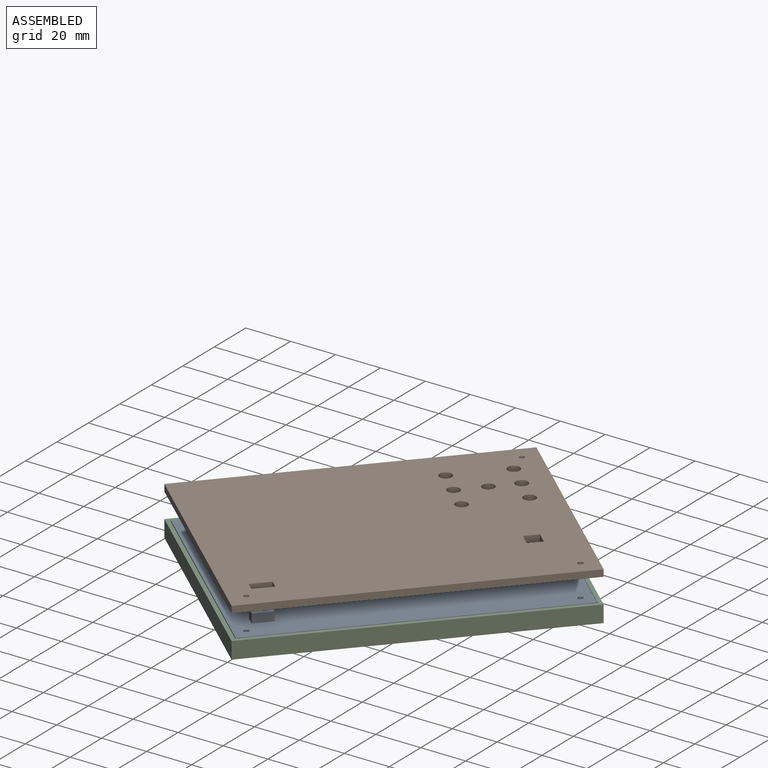
[diagram: assembled view]
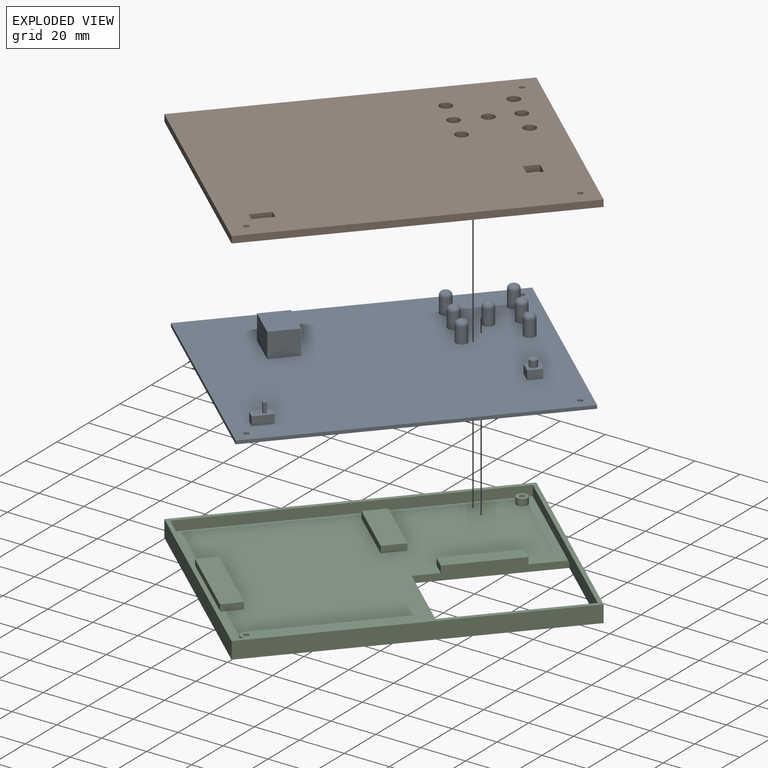
[diagram: exploded view]
GUIDED TOUR — MATED ASSEMBLY (Onshape document 810889190998281996123d04, AutoMate assembly 810889190998281996123d04_08385ad80a6543502da460e0_b0400b7bc38418ea9518d57a_default)

This assembly has 3 components, labeled P0..P2 below (a component is one placed occurrence of a part; the same part can appear more than once), held together by 2 mates. A mate is a constraint between two components; its type names the relative motion it leaves free:
  SLIDER — leaves translation along the listed axis free.
Axis/direction vectors are unit vectors and 'through' points are millimeter coordinates, both in the assembly's world frame.

MATES
  1. SLIDER "Slider 2": P2 <-> P0, axis (0.000, 0.000, 1.000) through (-167.02, 120.14, 121.80) mm
  2. SLIDER "Slider 1": P1 <-> P0, axis (0.000, 0.000, -1.000) through (-167.02, 120.14, 134.45) mm

ASSEMBLY ORDER
  1. P2 — the base component [order verified]
  2. P0 [order verified]
  3. P1 [order verified]
Order-tag legend:
  [order verified] — this step's position reverses a verified removal order: the component was checked to insert without passing through the ones already placed.

Of the 3 components, 1 carries the full construction recipe — the FeatureScript program that regenerates the part's solid from scratch; the rest are supplied as boundary geometry only.
Each toured component is shown spotlighted twice — in the assembled view, then in the exploded view, where a leader line traces a displaced component back to its assembled socket (saturated green if recipe-attached, orange if geometry-only; every other component desaturated gray) — followed by its recipe or geometry summary and the mates that hold it.
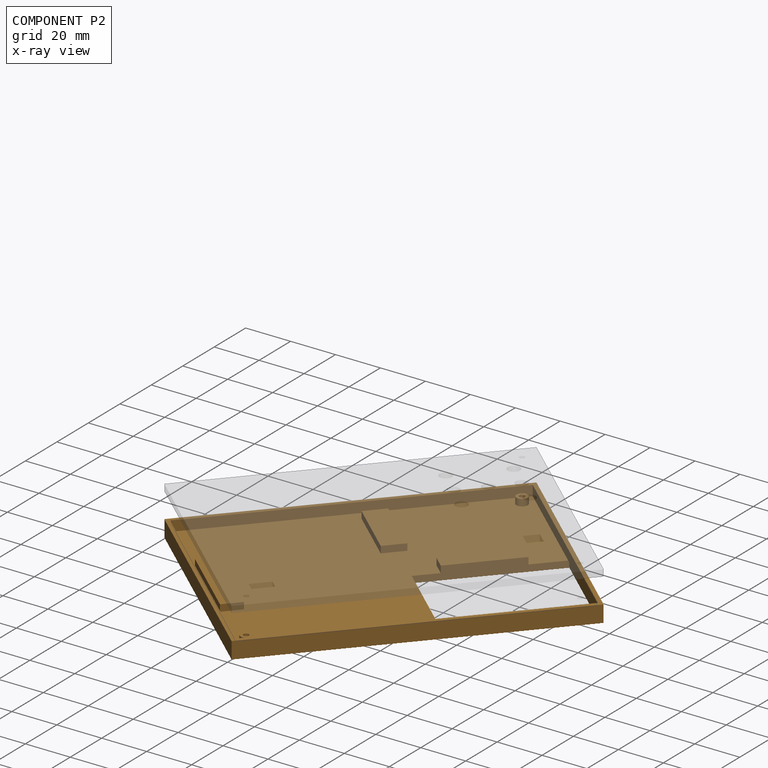
[diagram: component P2 — x-ray view]
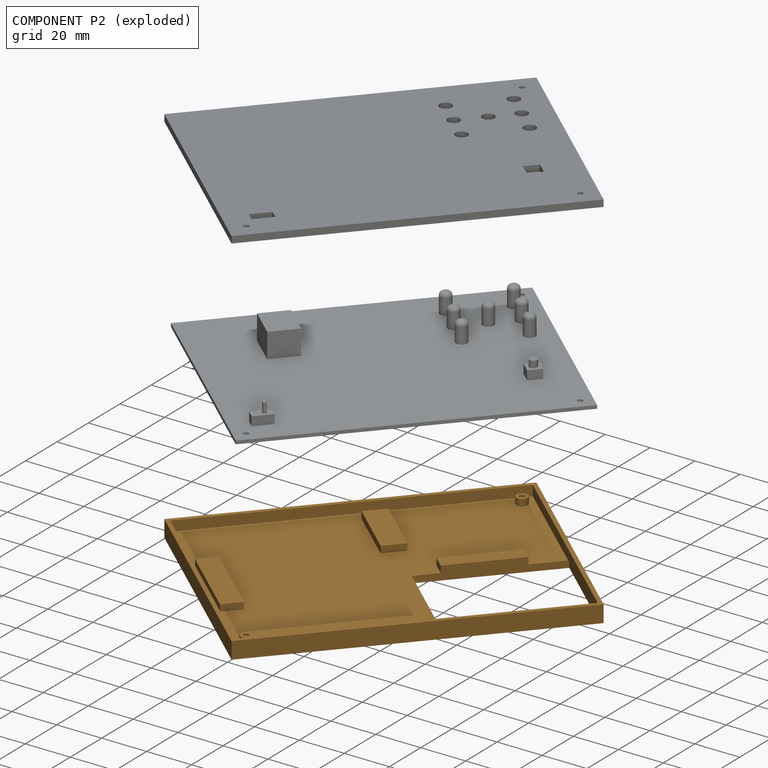
[diagram: component P2 — exploded]
COMPONENT P2 — geometry summary (no construction recipe available for this part):
  bounding box: 139.3 x 108.1 x 7.5 mm
  B-rep topology: 1 solid, 41 faces, 194 edges
  volume: 44405 mm^3 (39% of its bounding box)
Held by: SLIDER mate "Slider 2" to P0.
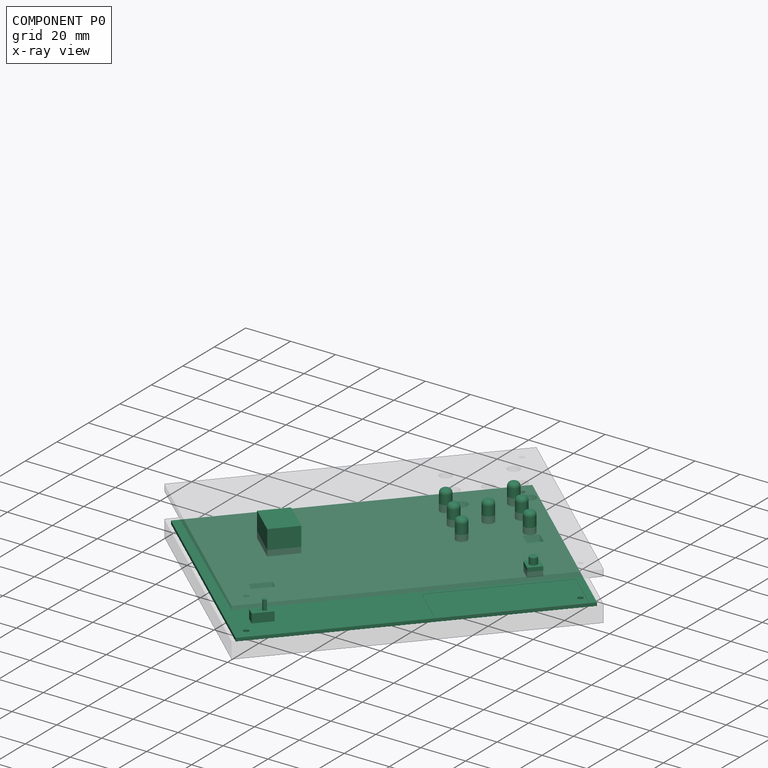
[diagram: component P0 — x-ray view]
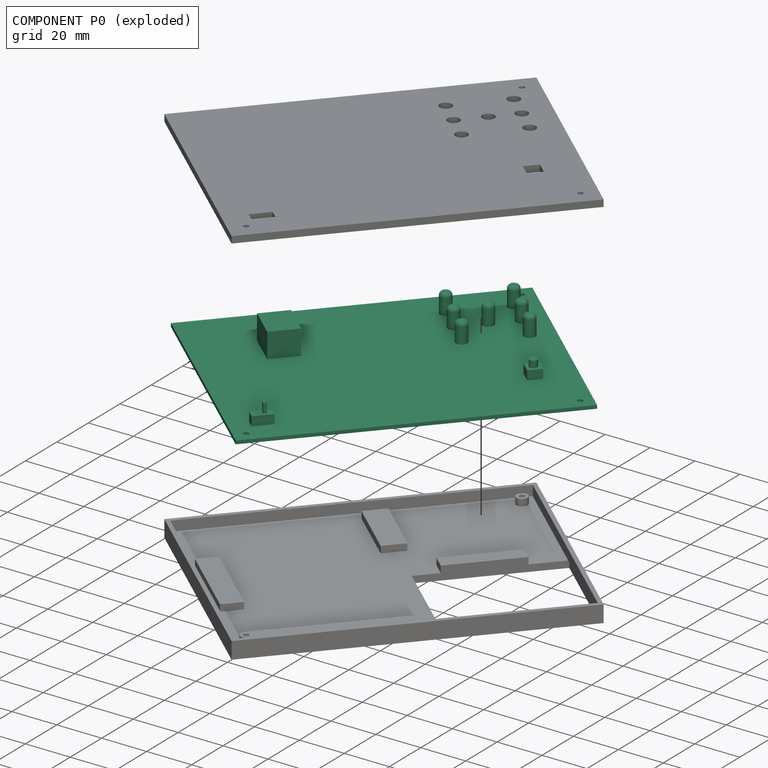
[diagram: component P0 — exploded]
COMPONENT P0 — recipe-attached (CADFS 00832274, mesh-verified: the recipe's output STEP matches this component's geometry to below the mesh-comparison resolution (tessellation chordal tolerance ~0.257 mm)).
Held by: SLIDER mate "Slider 2" to P2; SLIDER mate "Slider 1" to P1.
Construction recipe (FeatureScript — the CAD program that rebuilds this solid; sketch coordinates are in the units given by the * unit suffixes, e.g. mm):

FeatureScript 1511;
import(path : "onshape/std/geometry.fs", version : "1511.0");
import(path : "onshape/std/common.fs", version : "1511.0");
const mm = millimeter;
const VERTEX = EntityType.VERTEX;
const EDGE = EntityType.EDGE;
const FACE = EntityType.FACE;
const BODY = EntityType.BODY;
function v(x, y){return vector(x, y);}
function OD(order){return orderDisambiguation(order);}
function OSD(set){return originalSetDisambiguation(set);}
function TD(topology){return topologyDisambiguation(topology);}
function TDD(query){return trueDependencyDisambiguation(query);}
function sQuery(a, b, c) {return sketchEntityQuery(a, b, c);}

annotation { "Feature Type Name" : "Feature", "Feature Type Description" : "" }
export const myFeature = defineFeature(function(context is Context, id is Id, definition is map)
    precondition{}
    {
        {
            var Q0;
            Q0=qCreatedBy(makeId("Top.planeOp"),FACE);
            var sketch = newSketch(context, id + "F0", { "sketchPlane" : qUnion([Q0])});
            skLineSegment(sketch, "E0.bottom", {"start": v(-61.37, 62.92) * mm, "end": v(73.95, 62.92) * mm});
            skLineSegment(sketch, "E0.top", {"start": v(-61.37, -41.17) * mm, "end": v(73.95, -41.17) * mm});
            skLineSegment(sketch, "E0.left", {"start": v(-61.37, 62.92) * mm, "end": v(-61.37, -41.17) * mm});
            skLineSegment(sketch, "E0.right", {"start": v(73.95, 62.92) * mm, "end": v(73.95, -41.17) * mm});
            skCircle(sketch, "E1", {"center": v(68.9, 57.77) * mm, "radius": 1.15 * mm});
            skCircle(sketch, "E2", {"center": v(68.9, -36.02) * mm, "radius": 1.15 * mm});
            skCircle(sketch, "E3", {"center": v(-56.22, -36.02) * mm, "radius": 1.15 * mm});
            skSolve(sketch);
        }
        {
            var Q0;
            Q0=makeQuery(id+"F0.imprint","IMPRINT",FACE,{"disambiguationData":[TD([[makeQuery(id+"F0.imprint","IMPRINT",EDGE,{"derivedFrom":sQuery(id+"F0.wireOp",EDGE,"E0.bottom")}),-1.0]])]});
            extrude(context, id + "F1", {"entities" : qUnion([Q0]), "depth" : 1.5 * mm, "offsetDistance" : 25 * mm});
        }
        {
            var Q0;
            Q0=makeQuery(id+"F1.opExtrude","CAP_FACE",FACE,{"disambiguationData":[OSD([sQuery(id+"F0.wireOp",EDGE,"E0.bottom"),sQuery(id+"F0.wireOp",EDGE,"E0.top"),sQuery(id+"F0.wireOp",EDGE,"E0.left"),sQuery(id+"F0.wireOp",EDGE,"E0.right"),sQuery(id+"F0.wireOp",EDGE,"E1"),sQuery(id+"F0.wireOp",EDGE,"E2"),sQuery(id+"F0.wireOp",EDGE,"E3")])],"isStart":false});
            var sketch = newSketch(context, id + "F2", { "sketchPlane" : qUnion([Q0])});
            skLineSegment(sketch, "E4.bottom", {"start": v(-34.22, 41.03) * mm, "end": v(-21.49, 41.03) * mm});
            skLineSegment(sketch, "E4.top", {"start": v(-34.22, 24.66) * mm, "end": v(-21.49, 24.66) * mm});
            skLineSegment(sketch, "E4.left", {"start": v(-34.22, 41.03) * mm, "end": v(-34.22, 24.66) * mm});
            skLineSegment(sketch, "E4.right", {"start": v(-21.49, 41.03) * mm, "end": v(-21.49, 24.66) * mm});
            skLineSegment(sketch, "E5.bottom", {"start": v(-52.87, -26.37) * mm, "end": v(-44.27, -26.37) * mm});
            skLineSegment(sketch, "E5.top", {"start": v(-52.87, -30.37) * mm, "end": v(-44.27, -30.37) * mm});
            skLineSegment(sketch, "E5.left", {"start": v(-52.87, -26.37) * mm, "end": v(-52.87, -30.37) * mm});
            skLineSegment(sketch, "E5.right", {"start": v(-44.27, -26.37) * mm, "end": v(-44.27, -30.37) * mm});
            skLineSegment(sketch, "E6.bottom", {"start": v(53.95, -8.67) * mm, "end": v(59.95, -8.67) * mm});
            skLineSegment(sketch, "E6.top", {"start": v(53.95, -14.67) * mm, "end": v(59.95, -14.67) * mm});
            skLineSegment(sketch, "E6.left", {"start": v(53.95, -8.67) * mm, "end": v(53.95, -14.67) * mm});
            skLineSegment(sketch, "E6.right", {"start": v(59.95, -8.67) * mm, "end": v(59.95, -14.67) * mm});
            skCircle(sketch, "E7", {"center": v(38.2, 48.72) * mm, "radius": 2.5 * mm});
            skCircle(sketch, "E8", {"center": v(38.2, 35.97) * mm, "radius": 2.5 * mm});
            skCircle(sketch, "E9", {"center": v(38.2, 23.22) * mm, "radius": 2.5 * mm});
            skCircle(sketch, "E10", {"center": v(51.2, 35.97) * mm, "radius": 2.5 * mm});
            skCircle(sketch, "E11", {"center": v(63.7, 48.72) * mm, "radius": 2.5 * mm});
            skCircle(sketch, "E12", {"center": v(63.7, 35.97) * mm, "radius": 2.5 * mm});
            skCircle(sketch, "E13", {"center": v(63.7, 23.22) * mm, "radius": 2.5 * mm});
            skLineSegment(sketch, "E14.bottom", {"start": v(-46.82, -29.07) * mm, "end": v(-50.32, -29.07) * mm});
            skLineSegment(sketch, "E14.top", {"start": v(-46.82, -27.67) * mm, "end": v(-50.32, -27.67) * mm});
            skLineSegment(sketch, "E14.left", {"start": v(-46.82, -29.07) * mm, "end": v(-46.82, -27.67) * mm});
            skLineSegment(sketch, "E14.right", {"start": v(-50.32, -29.07) * mm, "end": v(-50.32, -27.67) * mm});
            skPoint(sketch, "E14.middle", {"position": v(-48.57, -28.37) * mm});
            skPoint(sketch, "E14.middle.positionSnap0", {"position": v(-48.57, -26.37) * mm});
            skPoint(sketch, "E14.middle.positionSnap1", {"position": v(-52.87, -28.37) * mm});
            skPoint(sketch, "E14.centerSnap0", {"position": v(-48.57, -26.37) * mm});
            skPoint(sketch, "E14.centerSnap1", {"position": v(-52.87, -28.37) * mm});
            skCircle(sketch, "E15", {"center": v(56.95, -11.67) * mm, "radius": 1.74 * mm});
            skPoint(sketch, "E15.centerSnap0", {"position": v(56.95, -8.67) * mm});
            skPoint(sketch, "E15.centerSnap1", {"position": v(59.95, -11.67) * mm});
            skSolve(sketch);
        }
        {
            var Q0;
            Q0=makeQuery(id+"F2.imprint","IMPRINT",FACE,{"disambiguationData":[TD([[makeQuery(id+"F2.imprint","IMPRINT",EDGE,{"derivedFrom":sQuery(id+"F2.wireOp",EDGE,"E5.bottom")}),-1.0]])]});
            extrude(context, id + "F3", {"entities" : qUnion([Q0]), "operationType" : NewBodyOperationType.ADD, "depth" : 4 * mm, "offsetDistance" : 25 * mm});
        }
        {
            var Q0;
            Q0=makeQuery(id+"F3.boolean.opBoolean","SPLIT",FACE,{"disambiguationData":[TD([makeQuery(id+"F3.opExtrude","SWEPT_FACE",FACE,{"disambiguationData":[OSD([sQuery(id+"F2.wireOp",EDGE,"E14.bottom")])]})])],"derivedFrom":makeQuery(id+"F1.opExtrude","CAP_FACE",FACE,{"disambiguationData":[OSD([sQuery(id+"F0.wireOp",EDGE,"E0.bottom"),sQuery(id+"F0.wireOp",EDGE,"E0.top"),sQuery(id+"F0.wireOp",EDGE,"E0.left"),sQuery(id+"F0.wireOp",EDGE,"E0.right"),sQuery(id+"F0.wireOp",EDGE,"E1"),sQuery(id+"F0.wireOp",EDGE,"E2"),sQuery(id+"F0.wireOp",EDGE,"E3")])],"isStart":false})});
            extrude(context, id + "F4", {"entities" : qUnion([Q0]), "operationType" : NewBodyOperationType.ADD, "depth" : 3.9 * mm, "offsetDistance" : 25 * mm});
        }
        {
            var Q0;
            Q0=makeQuery(id+"F4.opExtrude","CAP_FACE",FACE,{"disambiguationData":[OSD([sQuery(id+"F0.wireOp",EDGE,"E0.bottom"),sQuery(id+"F0.wireOp",EDGE,"E0.top"),sQuery(id+"F0.wireOp",EDGE,"E0.left"),sQuery(id+"F0.wireOp",EDGE,"E0.right"),sQuery(id+"F0.wireOp",EDGE,"E1"),sQuery(id+"F0.wireOp",EDGE,"E2"),sQuery(id+"F0.wireOp",EDGE,"E3")])],"isStart":false});
            var sketch = newSketch(context, id + "F5", { "sketchPlane" : qUnion([Q0])});
            skLineSegment(sketch, "E16.bottom", {"start": v(-46.82, -29.07) * mm, "end": v(-48.27, -29.07) * mm});
            skLineSegment(sketch, "E16.top", {"start": v(-46.82, -27.67) * mm, "end": v(-48.27, -27.67) * mm});
            skLineSegment(sketch, "E16.left", {"start": v(-46.82, -29.07) * mm, "end": v(-46.82, -27.67) * mm});
            skLineSegment(sketch, "E16.right", {"start": v(-48.27, -29.07) * mm, "end": v(-48.27, -27.67) * mm});
            skPoint(sketch, "E16.middle", {"position": v(-47.55, -28.37) * mm});
            skPoint(sketch, "E16.middle.positionSnap0", {"position": v(-46.82, -28.37) * mm});
            skPoint(sketch, "E16.centerSnap0", {"position": v(-46.82, -28.37) * mm});
            skSolve(sketch);
        }
        {
            var Q0;
            Q0=makeQuery(id+"F5.imprint","IMPRINT",FACE,{"disambiguationData":[TD([[makeQuery(id+"F5.imprint","IMPRINT",EDGE,{"derivedFrom":sQuery(id+"F5.wireOp",EDGE,"E16.bottom")}),-1.0]])]});
            extrude(context, id + "F6", {"entities" : qUnion([Q0]), "operationType" : NewBodyOperationType.ADD, "depth" : 4.5 * mm, "offsetDistance" : 25 * mm});
        }
        {
            var Q0;
            Q0=makeQuery(id+"F2.imprint","IMPRINT",FACE,{"disambiguationData":[TD([[makeQuery(id+"F2.imprint","IMPRINT",EDGE,{"derivedFrom":sQuery(id+"F2.wireOp",EDGE,"E6.bottom")}),-1.0]])]});
            extrude(context, id + "F7", {"entities" : qUnion([Q0]), "operationType" : NewBodyOperationType.ADD, "depth" : 4 * mm, "offsetDistance" : 25 * mm});
        }
        {
            var Q0;
            Q0=makeQuery(id+"F2.imprint","IMPRINT",FACE,{"disambiguationData":[TD([[makeQuery(id+"F2.imprint","IMPRINT",EDGE,{"derivedFrom":sQuery(id+"F2.wireOp",EDGE,"E15")}),1.0]])]});
            extrude(context, id + "F8", {"entities" : qUnion([Q0]), "operationType" : NewBodyOperationType.ADD, "depth" : 7 * mm, "offsetDistance" : 25 * mm});
        }
        {
            var Q0;
            Q0=makeQuery(id+"F2.imprint","IMPRINT",FACE,{"disambiguationData":[TD([[makeQuery(id+"F2.imprint","IMPRINT",EDGE,{"derivedFrom":sQuery(id+"F2.wireOp",EDGE,"E9")}),1.0]])]});
            var Q1;
            Q1=makeQuery(id+"F2.imprint","IMPRINT",FACE,{"disambiguationData":[TD([[makeQuery(id+"F2.imprint","IMPRINT",EDGE,{"derivedFrom":sQuery(id+"F2.wireOp",EDGE,"E10")}),1.0]])]});
            var Q2;
            Q2=makeQuery(id+"F2.imprint","IMPRINT",FACE,{"disambiguationData":[TD([[makeQuery(id+"F2.imprint","IMPRINT",EDGE,{"derivedFrom":sQuery(id+"F2.wireOp",EDGE,"E12")}),1.0]])]});
            var Q3;
            Q3=makeQuery(id+"F2.imprint","IMPRINT",FACE,{"disambiguationData":[TD([[makeQuery(id+"F2.imprint","IMPRINT",EDGE,{"derivedFrom":sQuery(id+"F2.wireOp",EDGE,"E13")}),1.0]])]});
            var Q4;
            Q4=makeQuery(id+"F2.imprint","IMPRINT",FACE,{"disambiguationData":[TD([[makeQuery(id+"F2.imprint","IMPRINT",EDGE,{"derivedFrom":sQuery(id+"F2.wireOp",EDGE,"E8")}),1.0]])]});
            var Q5;
            Q5=makeQuery(id+"F2.imprint","IMPRINT",FACE,{"disambiguationData":[TD([[makeQuery(id+"F2.imprint","IMPRINT",EDGE,{"derivedFrom":sQuery(id+"F2.wireOp",EDGE,"E11")}),1.0]])]});
            var Q6;
            Q6=makeQuery(id+"F2.imprint","IMPRINT",FACE,{"disambiguationData":[TD([[makeQuery(id+"F2.imprint","IMPRINT",EDGE,{"derivedFrom":sQuery(id+"F2.wireOp",EDGE,"E7")}),1.0]])]});
            extrude(context, id + "F9", {"entities" : qUnion([Q0, Q1, Q2, Q3, Q4, Q5, Q6]), "operationType" : NewBodyOperationType.ADD, "depth" : 9 * mm, "offsetDistance" : 25 * mm});
        }
        {
            var Q0;
            Q0=makeQuery(id+"F9.opExtrude","CAP_EDGE",EDGE,{"disambiguationData":[OSD([sQuery(id+"F2.wireOp",EDGE,"E9")])],"isStart":false});
            var Q1;
            Q1=makeQuery(id+"F9.opExtrude","CAP_EDGE",EDGE,{"disambiguationData":[OSD([sQuery(id+"F2.wireOp",EDGE,"E8")])],"isStart":false});
            var Q2;
            Q2=makeQuery(id+"F9.opExtrude","CAP_EDGE",EDGE,{"disambiguationData":[OSD([sQuery(id+"F2.wireOp",EDGE,"E10")])],"isStart":false});
            var Q3;
            Q3=makeQuery(id+"F9.opExtrude","CAP_EDGE",EDGE,{"disambiguationData":[OSD([sQuery(id+"F2.wireOp",EDGE,"E7")])],"isStart":false});
            var Q4;
            Q4=makeQuery(id+"F9.opExtrude","CAP_EDGE",EDGE,{"disambiguationData":[OSD([sQuery(id+"F2.wireOp",EDGE,"E12")])],"isStart":false});
            var Q5;
            Q5=makeQuery(id+"F9.opExtrude","CAP_EDGE",EDGE,{"disambiguationData":[OSD([sQuery(id+"F2.wireOp",EDGE,"E11")])],"isStart":false});
            var Q6;
            Q6=makeQuery(id+"F9.opExtrude","CAP_EDGE",EDGE,{"disambiguationData":[OSD([sQuery(id+"F2.wireOp",EDGE,"E13")])],"isStart":false});
            fillet(context, id + "F10", {"entities" : qUnion([Q0, Q1, Q2, Q3, Q4, Q5, Q6]), "radius" : 1.8 * mm, "tangentPropagation" : true, "allowEdgeOverflow" : false});
        }
        {
            var Q0;
            Q0=makeQuery(id+"F2.imprint","IMPRINT",FACE,{"disambiguationData":[TD([[makeQuery(id+"F2.imprint","IMPRINT",EDGE,{"derivedFrom":sQuery(id+"F2.wireOp",EDGE,"E4.bottom")}),-1.0]])]});
            extrude(context, id + "F11", {"entities" : qUnion([Q0]), "operationType" : NewBodyOperationType.ADD, "depth" : 11 * mm, "offsetDistance" : 25 * mm});
        }
    });
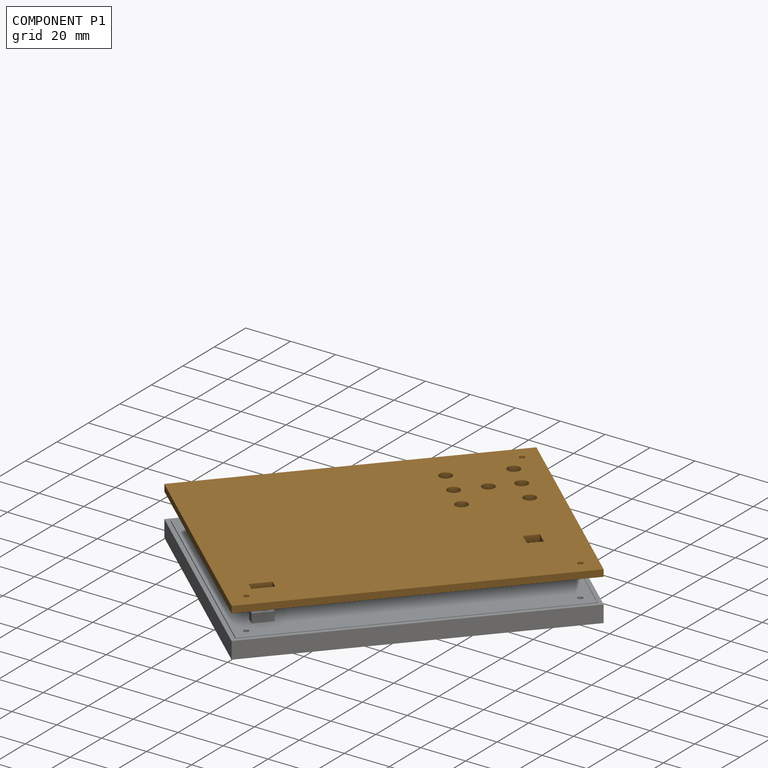
[diagram: component P1 — assembled]
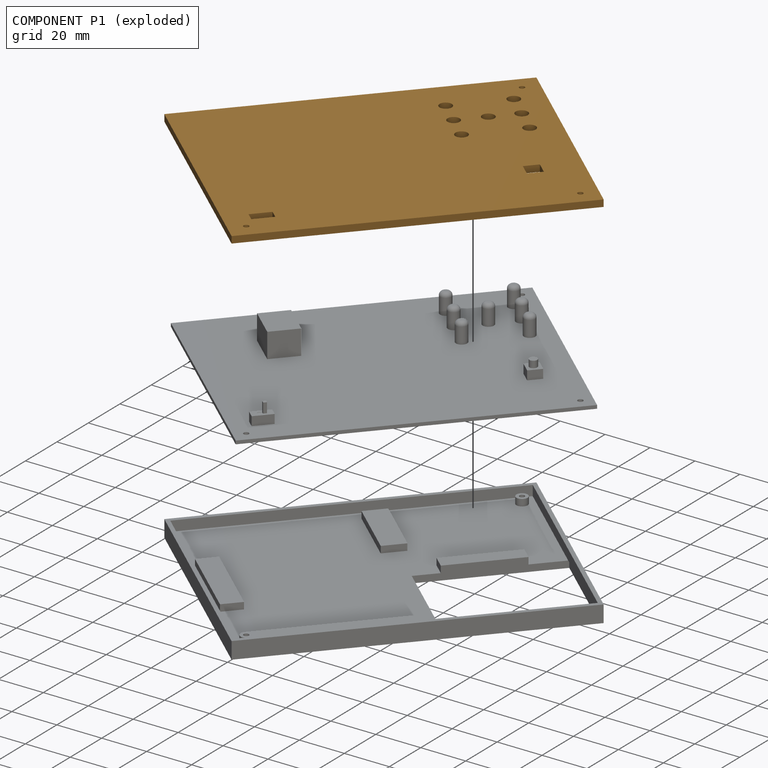
[diagram: component P1 — exploded]
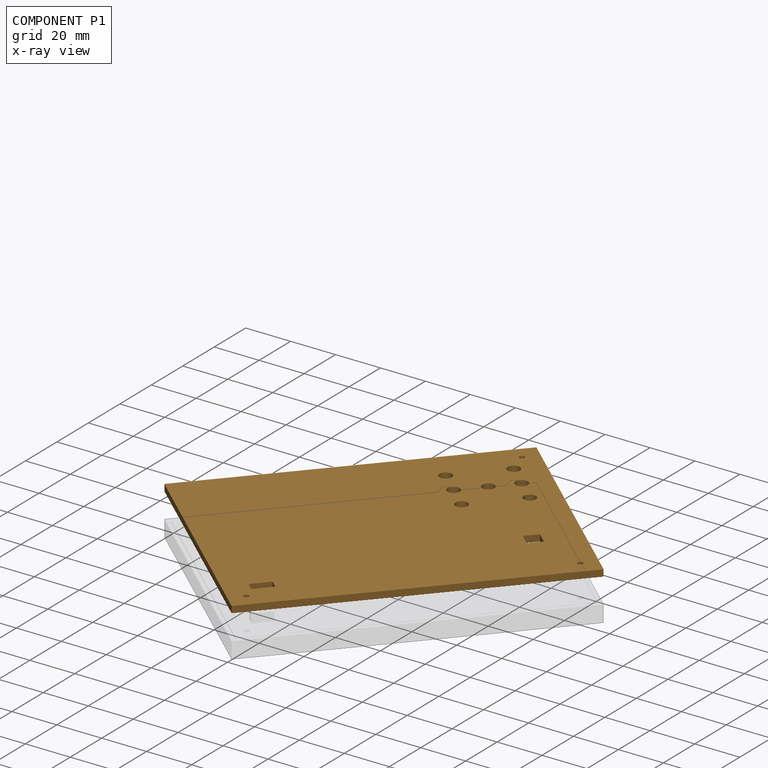
[diagram: component P1 — x-ray view]
COMPONENT P1 — geometry summary (no construction recipe available for this part):
  bounding box: 139.3 x 108.1 x 3.0 mm
  B-rep topology: 1 solid, 24 faces, 132 edges
  volume: 44417 mm^3 (98% of its bounding box)
  symmetry: mirror-symmetric across its z mid-plane
Held by: SLIDER mate "Slider 1" to P0.
PROVENANCE & LICENSES
Assembly (occurrences, transforms, mates, per-part STEP geometry): AutoMate dataset, Zenodo record 7776208, CC0.
Construction recipes: CADFS (HuggingFace VladPyatov/CADFS, CC-BY-4.0, layered over the ABC dataset), FeatureScript reconstruction programs keyed by ABC model id.
Join: ABC meta listings map ABC model id -> Onshape documentId; within a shared document, parts are matched by geometric signature (bounding-box dims + volume at 0.1% relative tolerance, exact B-rep face/solid counts).
Verification: 1 of this assembly's 3 components carries a recipe attachment, and every attachment is mesh-verified: the CADFS STEP and the AutoMate member STEP were compared as meshes in their shared local frame (symmetric sampled-point-to-mesh distance); worst across the 1 attachment: below the mesh-comparison resolution (tessellation chordal tolerance ~0.257 mm) on a 171 mm part.
Renders: orthographic iso camera (az 35 / el 25); the floor grid conveys scale (grid pitch printed in each image; no ruler). In the exploded view each component is displaced by its stored offset vector: the offsets alone carry the explosion direction (mate normal/axis signs are not orientation cues and do not encode it), and separation distances are assigned per mate-chain, not proportionally to assembly-order depth.
